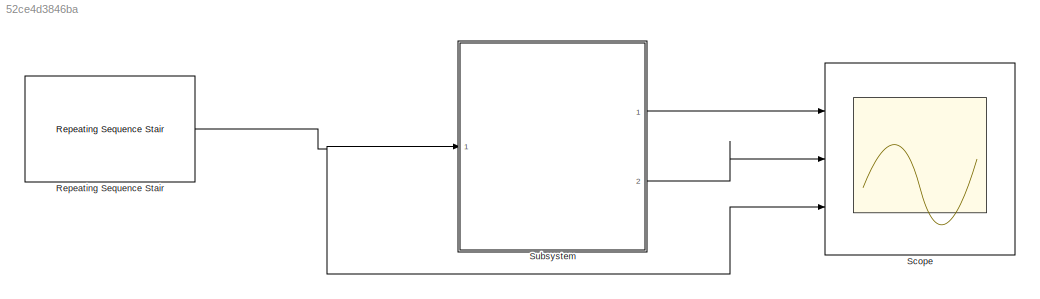
MODEL slx_52ce4d3846ba
KIND model
CONFIG AbsTol = auto
CONFIG EnableMultiTasking = off
CONFIG FixedStep = 1
CONFIG MaxStep = auto
CONFIG MinStep = auto
CONFIG RelTol = 1e-3
CONFIG SampleTimeConstraint = Unconstrained
CONFIG SolverName = FixedStepAuto
CONFIG StartTime = 0.0
CONFIG StopTime = 10.0
BLOCK [Reference] Repeating Sequence Stair  REF=simulink/Sources/Repeating
Sequence
Stair
  Ports = [0, 1]
  SourceBlock = simulink/Sources/Repeating\nSequence\nStair
  SourceProductBaseCode = SL
  SourceType = Repeating Sequence Stair
BLOCK [Scope] Scope
  Floating = off
  NumInputPorts = 3
  Ports = [3]
  ScopeSpecificationString = Simulink.scopes.TimeScopeBlockCfg('CurrentConfiguration', extmgr.ConfigurationSet(extmgr.Configuration('Core','General UI',true),extmgr.Configuration('Core','Source UI',true),extmgr.Configuration('Sources','WiredSimulink',true),extmgr.Configuration('Visuals','Time Domain',true,'SerializedDisplays',{struct('MinYLimReal','-1.25','MaxYLimReal','1.25','YLabelReal','','MinYLimMag','0.00000','MaxYLimMag...<+2647ch>
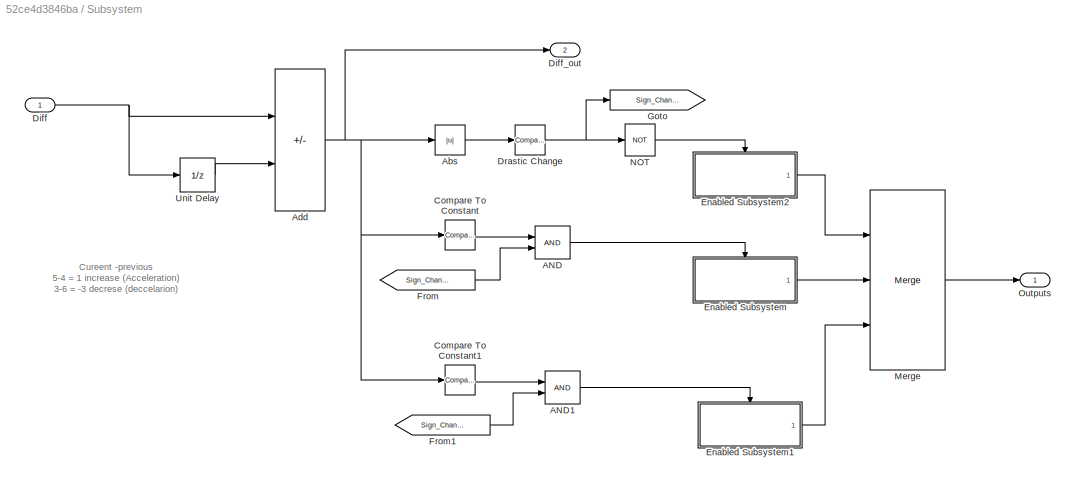
BLOCK [SubSystem] Subsystem
  Ports = [1, 2]
  RequestExecContextInheritance = off
BLOCK [Logic] Subsystem/AND
  AllPortsSameDT = off
  OutDataTypeStr = boolean
  Ports = [2, 1]
BLOCK [Logic] Subsystem/AND1
  AllPortsSameDT = off
  OutDataTypeStr = boolean
  Ports = [2, 1]
BLOCK [Abs] Subsystem/Abs
  SaturateOnIntegerOverflow = off
BLOCK [Sum] Subsystem/Add
  IconShape = rectangular
  Inputs = +-
  Ports = [2, 1]
BLOCK [Reference] Subsystem/Compare To Constant  REF=simulink/Logic and Bit
Operations/Compare
To Constant
  Ports = [1, 1]
  SourceBlock = simulink/Logic and Bit\nOperations/Compare\nTo Constant
  SourceProductBaseCode = SL
  SourceType = Compare To Constant
BLOCK [Reference] Subsystem/Compare To Constant1  REF=simulink/Logic and Bit
Operations/Compare
To Constant
  Ports = [1, 1]
  SourceBlock = simulink/Logic and Bit\nOperations/Compare\nTo Constant
  SourceProductBaseCode = SL
  SourceType = Compare To Constant
BLOCK [Inport] Subsystem/Diff
BLOCK [Outport] Subsystem/Diff_out
  Port = 2
BLOCK [Reference] Subsystem/Drastic Change  REF=simulink/Logic and Bit
Operations/Compare
To Constant
  Ports = [1, 1]
  SourceBlock = simulink/Logic and Bit\nOperations/Compare\nTo Constant
  SourceProductBaseCode = SL
  SourceType = Compare To Constant
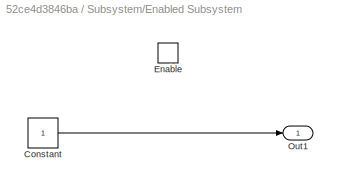
BLOCK [SubSystem] Subsystem/Enabled Subsystem
  Ports = [0, 1, 1]
  RequestExecContextInheritance = off
  TreatAsAtomicUnit = on
BLOCK [Constant] Subsystem/Enabled Subsystem/Constant
BLOCK [EnablePort] Subsystem/Enabled Subsystem/Enable
  Ports = []
BLOCK [Outport] Subsystem/Enabled Subsystem/Out1
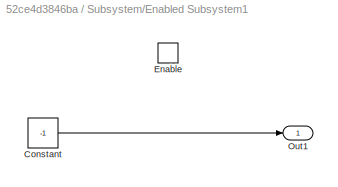
BLOCK [SubSystem] Subsystem/Enabled Subsystem1
  Ports = [0, 1, 1]
  RequestExecContextInheritance = off
  TreatAsAtomicUnit = on
BLOCK [Constant] Subsystem/Enabled Subsystem1/Constant
  Value = -1
BLOCK [EnablePort] Subsystem/Enabled Subsystem1/Enable
  Ports = []
BLOCK [Outport] Subsystem/Enabled Subsystem1/Out1
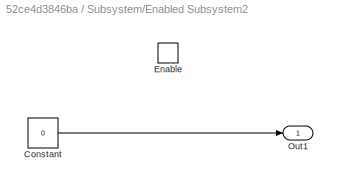
BLOCK [SubSystem] Subsystem/Enabled Subsystem2
  Ports = [0, 1, 1]
  RequestExecContextInheritance = off
  TreatAsAtomicUnit = on
BLOCK [Constant] Subsystem/Enabled Subsystem2/Constant
  Value = 0
BLOCK [EnablePort] Subsystem/Enabled Subsystem2/Enable
  Ports = []
BLOCK [Outport] Subsystem/Enabled Subsystem2/Out1
BLOCK [From] Subsystem/From
  GotoTag = Sign_Changes
BLOCK [From] Subsystem/From1
  GotoTag = Sign_Changes
BLOCK [Goto] Subsystem/Goto
  GotoTag = Sign_Changes
BLOCK [Merge] Subsystem/Merge
  Inputs = 3
  Ports = [3, 1]
BLOCK [Logic] Subsystem/NOT
  AllPortsSameDT = off
  Operator = NOT
  OutDataTypeStr = boolean
  Ports = [1, 1]
BLOCK [Outport] Subsystem/Outputs
BLOCK [UnitDelay] Subsystem/Unit Delay
  HasFrameUpgradeWarning = on
  InitialCondition = 60
  SampleTime = -1
ANNOTATION Subsystem: Cureent -previous 5-4 = 1 increase (Acceleration) 3-6 = -3 decrese (deccelarion)
NET Repeating Sequence Stair:1 -> Scope:3, Subsystem:1
LINE Subsystem/AND1:1 -> Subsystem/Enabled Subsystem1:enable
LINE Subsystem/AND:1 -> Subsystem/Enabled Subsystem:enable
LINE Subsystem/Abs:1 -> Subsystem/Drastic Change:1
NET Subsystem/Add:1 -> Subsystem/Abs:1, Subsystem/Compare To Constant1:1, Subsystem/Compare To Constant:1, Subsystem/Diff_out:1
LINE Subsystem/Compare To Constant1:1 -> Subsystem/AND1:1
LINE Subsystem/Compare To Constant:1 -> Subsystem/AND:1
NET Subsystem/Diff:1 -> Subsystem/Add:1, Subsystem/Unit Delay:1
NET Subsystem/Drastic Change:1 -> Subsystem/Goto:1, Subsystem/NOT:1
LINE Subsystem/Enabled Subsystem/Constant:1 -> Subsystem/Enabled Subsystem/Out1:1
LINE Subsystem/Enabled Subsystem1/Constant:1 -> Subsystem/Enabled Subsystem1/Out1:1
LINE Subsystem/Enabled Subsystem1:1 -> Subsystem/Merge:3
LINE Subsystem/Enabled Subsystem2/Constant:1 -> Subsystem/Enabled Subsystem2/Out1:1
LINE Subsystem/Enabled Subsystem2:1 -> Subsystem/Merge:1
LINE Subsystem/Enabled Subsystem:1 -> Subsystem/Merge:2
LINE Subsystem/From1:1 -> Subsystem/AND1:2
LINE Subsystem/From:1 -> Subsystem/AND:2
LINE Subsystem/Merge:1 -> Subsystem/Outputs:1
LINE Subsystem/NOT:1 -> Subsystem/Enabled Subsystem2:enable
LINE Subsystem/Unit Delay:1 -> Subsystem/Add:2
LINE Subsystem:1 -> Scope:1
LINE Subsystem:2 -> Scope:2
note: NET lines group one-source signal fan-out (src -> all destinations, sorted); 1:1 wires keep LINE
